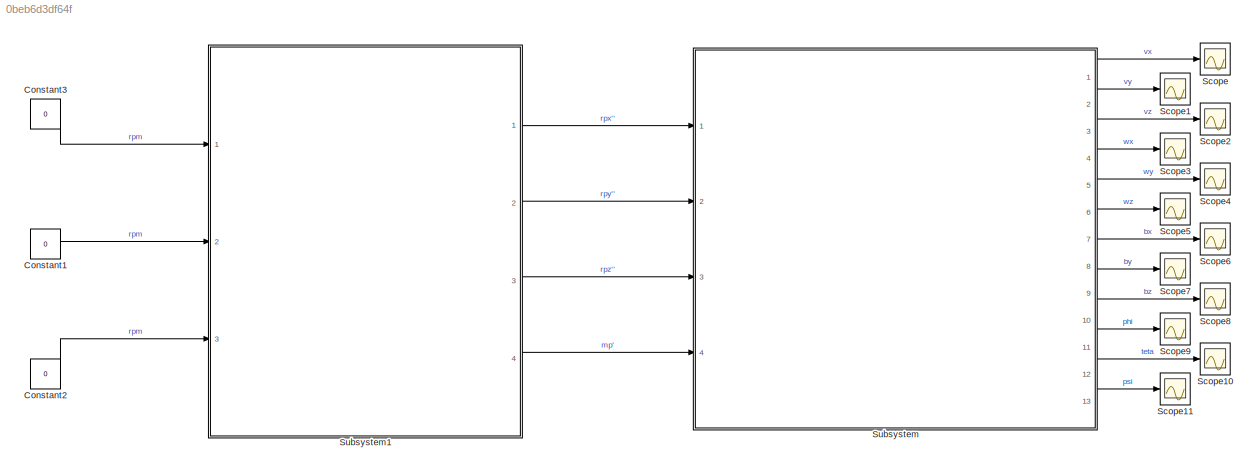
MODEL slx_0beb6d3df64f
KIND model
CONFIG AbsTol = auto
CONFIG EnableMultiTasking = on
CONFIG FixedStep = auto
CONFIG MaxStep = auto
CONFIG MinStep = auto
CONFIG RelTol = 1e-3
CONFIG SampleTimeConstraint = Unconstrained
CONFIG SolverName = VariableStepAuto
CONFIG StartTime = 0.0
CONFIG StopTime = 100
BLOCK [Constant] Constant1
  Value = 0
BLOCK [Constant] Constant2
  Value = 0
BLOCK [Constant] Constant3
  Value = 0
BLOCK [Scope] Scope
  Floating = off
  NumInputPorts = 1
  Ports = [1]
  ScopeSpecificationString = Simulink.scopes.TimeScopeBlockCfg('CurrentConfiguration', extmgr.ConfigurationSet(extmgr.Configuration('Core','General UI',true),extmgr.Configuration('Core','Source UI',true),extmgr.Configuration('Sources','WiredSimulink',true,'DataLoggingVariableName','ScopeData1'),extmgr.Configuration('Visuals','Time Domain',true,'SerializedDisplays',{struct('MinYLimReal','-1.00000','MaxYLimReal','1.00000','YLab...<+1361ch>
BLOCK [Scope] Scope1
  Floating = off
  NumInputPorts = 1
  Ports = [1]
  ScopeSpecificationString = Simulink.scopes.TimeScopeBlockCfg('CurrentConfiguration', extmgr.ConfigurationSet(extmgr.Configuration('Core','General UI',true),extmgr.Configuration('Core','Source UI',true),extmgr.Configuration('Sources','WiredSimulink',true,'DataLoggingVariableName','ScopeData2'),extmgr.Configuration('Visuals','Time Domain',true,'SerializedDisplays',{struct('MinYLimReal','-1.00000','MaxYLimReal','1.00000','YLab...<+1388ch>
BLOCK [Scope] Scope10
  Floating = off
  NumInputPorts = 1
  Ports = [1]
  ScopeSpecificationString = Simulink.scopes.TimeScopeBlockCfg('CurrentConfiguration', extmgr.ConfigurationSet(extmgr.Configuration('Core','General UI',true),extmgr.Configuration('Core','Source UI',true),extmgr.Configuration('Sources','WiredSimulink',true,'DataLoggingVariableName','ScopeData11'),extmgr.Configuration('Visuals','Time Domain',true,'SerializedDisplays',{struct('MinYLimReal','-0.07414','MaxYLimReal','0.6673','YLab...<+1360ch>
BLOCK [Scope] Scope11
  Floating = off
  NumInputPorts = 1
  Ports = [1]
  ScopeSpecificationString = Simulink.scopes.TimeScopeBlockCfg('CurrentConfiguration', extmgr.ConfigurationSet(extmgr.Configuration('Core','General UI',true),extmgr.Configuration('Core','Source UI',true),extmgr.Configuration('Sources','WiredSimulink',true,'DataLoggingVariableName','ScopeData12'),extmgr.Configuration('Visuals','Time Domain',true,'SerializedDisplays',{struct('MinYLimReal','-1.00000','MaxYLimReal','1.00000','YLa...<+1363ch>
BLOCK [Scope] Scope2
  Floating = off
  NumInputPorts = 1
  Ports = [1]
  ScopeSpecificationString = Simulink.scopes.TimeScopeBlockCfg('CurrentConfiguration', extmgr.ConfigurationSet(extmgr.Configuration('Core','General UI',true),extmgr.Configuration('Core','Source UI',true),extmgr.Configuration('Sources','WiredSimulink',true,'DataLoggingVariableName','ScopeData3'),extmgr.Configuration('Visuals','Time Domain',true,'SerializedDisplays',{struct('MinYLimReal','-1.00000','MaxYLimReal','1.00000','YLab...<+1409ch>
BLOCK [Scope] Scope3
  Floating = off
  NumInputPorts = 1
  Ports = [1]
  ScopeSpecificationString = Simulink.scopes.TimeScopeBlockCfg('CurrentConfiguration', extmgr.ConfigurationSet(extmgr.Configuration('Core','General UI',true),extmgr.Configuration('Core','Source UI',true),extmgr.Configuration('Sources','WiredSimulink',true,'DataLoggingVariableName','ScopeData4'),extmgr.Configuration('Visuals','Time Domain',true,'SerializedDisplays',{struct('MinYLimReal','-1.00000','MaxYLimReal','1.00000','YLab...<+1361ch>
BLOCK [Scope] Scope4
  Floating = off
  NumInputPorts = 1
  Ports = [1]
  ScopeSpecificationString = Simulink.scopes.TimeScopeBlockCfg('CurrentConfiguration', extmgr.ConfigurationSet(extmgr.Configuration('Core','General UI',true),extmgr.Configuration('Core','Source UI',true),extmgr.Configuration('Sources','WiredSimulink',true,'DataLoggingVariableName','ScopeData5'),extmgr.Configuration('Visuals','Time Domain',true,'SerializedDisplays',{struct('MinYLimReal','-0.01916','MaxYLimReal','0.04932','YLab...<+1361ch>
BLOCK [Scope] Scope5
  Floating = off
  NumInputPorts = 1
  Ports = [1]
  ScopeSpecificationString = Simulink.scopes.TimeScopeBlockCfg('CurrentConfiguration', extmgr.ConfigurationSet(extmgr.Configuration('Core','General UI',true),extmgr.Configuration('Core','Source UI',true),extmgr.Configuration('Sources','WiredSimulink',true,'DataLoggingVariableName','ScopeData6'),extmgr.Configuration('Visuals','Time Domain',true,'SerializedDisplays',{struct('MinYLimReal','-1.00000','MaxYLimReal','1.00000','YLab...<+1361ch>
BLOCK [Scope] Scope6
  Floating = off
  NumInputPorts = 1
  Ports = [1]
  ScopeSpecificationString = Simulink.scopes.TimeScopeBlockCfg('CurrentConfiguration', extmgr.ConfigurationSet(extmgr.Configuration('Core','General UI',true),extmgr.Configuration('Core','Source UI',true),extmgr.Configuration('Sources','WiredSimulink',true,'DataLoggingVariableName','ScopeData7'),extmgr.Configuration('Visuals','Time Domain',true,'SerializedDisplays',{struct('MinYLimReal','-0.00114','MaxYLimReal','0.0046','YLabe...<+1357ch>
BLOCK [Scope] Scope7
  Floating = off
  NumInputPorts = 1
  Ports = [1]
  ScopeSpecificationString = Simulink.scopes.TimeScopeBlockCfg('CurrentConfiguration', extmgr.ConfigurationSet(extmgr.Configuration('Core','General UI',true),extmgr.Configuration('Core','Source UI',true),extmgr.Configuration('Sources','WiredSimulink',true,'DataLoggingVariableName','ScopeData8'),extmgr.Configuration('Visuals','Time Domain',true,'SerializedDisplays',{struct('MinYLimReal','-1.00000','MaxYLimReal','1.00000','YLab...<+1688ch>
BLOCK [Scope] Scope8
  Floating = off
  NumInputPorts = 1
  Ports = [1]
  ScopeSpecificationString = Simulink.scopes.TimeScopeBlockCfg('CurrentConfiguration', extmgr.ConfigurationSet(extmgr.Configuration('Core','General UI',true),extmgr.Configuration('Core','Source UI',true),extmgr.Configuration('Sources','WiredSimulink',true,'DataLoggingVariableName','ScopeData9'),extmgr.Configuration('Visuals','Time Domain',true,'SerializedDisplays',{struct('MinYLimReal','-0.00128','MaxYLimReal','0.00121','YLab...<+1361ch>
BLOCK [Scope] Scope9
  Floating = off
  NumInputPorts = 1
  Ports = [1]
  ScopeSpecificationString = Simulink.scopes.TimeScopeBlockCfg('CurrentConfiguration', extmgr.ConfigurationSet(extmgr.Configuration('Core','General UI',true),extmgr.Configuration('Core','Source UI',true),extmgr.Configuration('Sources','WiredSimulink',true,'DataLoggingVariableName','ScopeData10'),extmgr.Configuration('Visuals','Time Domain',true,'SerializedDisplays',{struct('MinYLimReal','-1.00000','MaxYLimReal','1.00000','YLa...<+1362ch>
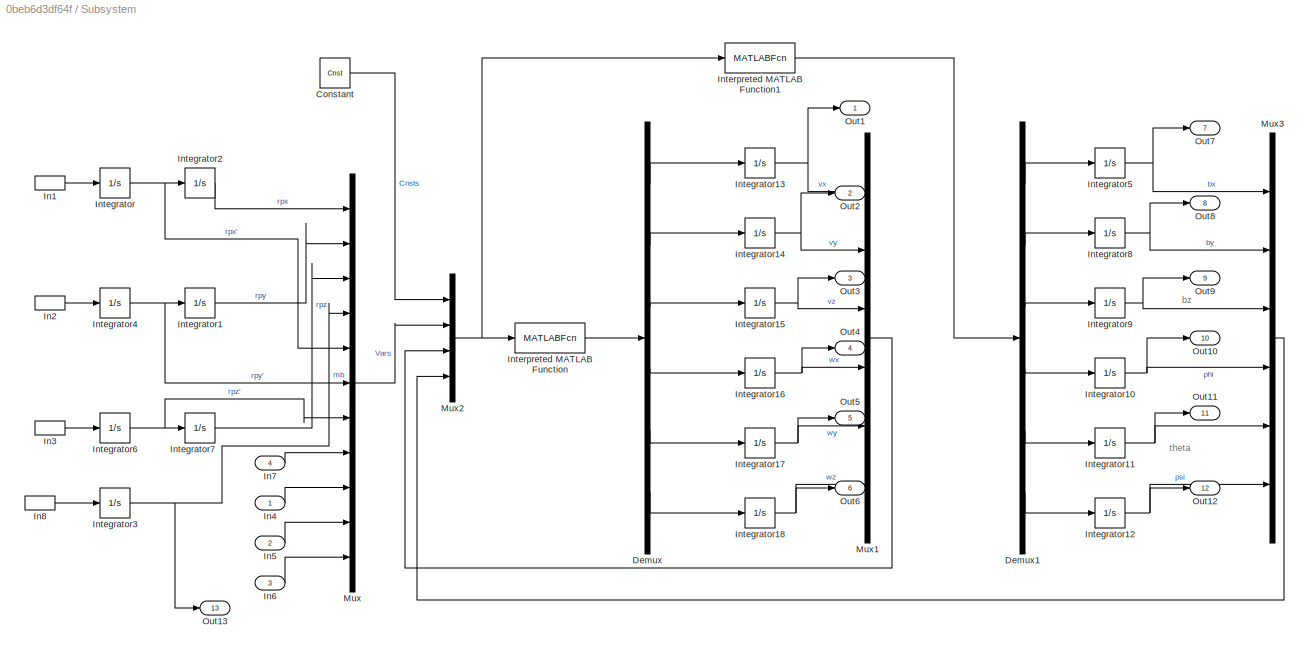
BLOCK [SubSystem] Subsystem
  Ports = [4, 13]
  RequestExecContextInheritance = off
BLOCK [Constant] Subsystem/Constant
  Value = Cnst
BLOCK [Demux] Subsystem/Demux
  Outputs = 6
  Ports = [1, 6]
BLOCK [Demux] Subsystem/Demux1
  Outputs = 6
  Ports = [1, 6]
BLOCK [InportShadow] Subsystem/In1
BLOCK [InportShadow] Subsystem/In2
  Port = 2
BLOCK [InportShadow] Subsystem/In3
  Port = 3
BLOCK [Inport] Subsystem/In4
BLOCK [Inport] Subsystem/In5
  Port = 2
BLOCK [Inport] Subsystem/In6
  Port = 3
BLOCK [Inport] Subsystem/In7
  Port = 4
BLOCK [InportShadow] Subsystem/In8
  Port = 4
BLOCK [Integrator] Subsystem/Integrator
  Ports = [1, 1]
BLOCK [Integrator] Subsystem/Integrator1
  InitialCondition = rpy0
  Ports = [1, 1]
BLOCK [Integrator] Subsystem/Integrator10
  Ports = [1, 1]
BLOCK [Integrator] Subsystem/Integrator11
  Ports = [1, 1]
BLOCK [Integrator] Subsystem/Integrator12
  Ports = [1, 1]
BLOCK [Integrator] Subsystem/Integrator13
  Ports = [1, 1]
BLOCK [Integrator] Subsystem/Integrator14
  Ports = [1, 1]
BLOCK [Integrator] Subsystem/Integrator15
  Ports = [1, 1]
BLOCK [Integrator] Subsystem/Integrator16
  Ports = [1, 1]
BLOCK [Integrator] Subsystem/Integrator17
  Ports = [1, 1]
BLOCK [Integrator] Subsystem/Integrator18
  Ports = [1, 1]
BLOCK [Integrator] Subsystem/Integrator2
  InitialCondition = rpx0
  Ports = [1, 1]
BLOCK [Integrator] Subsystem/Integrator3
  InitialCondition = mb0
  Ports = [1, 1]
BLOCK [Integrator] Subsystem/Integrator4
  Ports = [1, 1]
BLOCK [Integrator] Subsystem/Integrator5
  Ports = [1, 1]
BLOCK [Integrator] Subsystem/Integrator6
  Ports = [1, 1]
BLOCK [Integrator] Subsystem/Integrator7
  InitialCondition = rpz0
  Ports = [1, 1]
BLOCK [Integrator] Subsystem/Integrator8
  Ports = [1, 1]
BLOCK [Integrator] Subsystem/Integrator9
  Ports = [1, 1]
BLOCK [MATLABFcn] Subsystem/Interpreted MATLAB Function
  MATLABFcn = Calculate_acceleration_body
  OutputDimensions = 6
  Ports = [1, 1]
BLOCK [MATLABFcn] Subsystem/Interpreted MATLAB Function1
  MATLABFcn = Calculate_velocity_inertial
  Output1D = off
  OutputDimensions = 6
  Ports = [1, 1]
BLOCK [Mux] Subsystem/Mux
  DisplayOption = bar
  Inputs = 11
  Ports = [11, 1]
BLOCK [Mux] Subsystem/Mux1
  DisplayOption = bar
  Inputs = 6
  Ports = [6, 1]
BLOCK [Mux] Subsystem/Mux2
  DisplayOption = bar
  Ports = [4, 1]
BLOCK [Mux] Subsystem/Mux3
  DisplayOption = bar
  Inputs = 6
  Ports = [6, 1]
BLOCK [Outport] Subsystem/Out1
BLOCK [Outport] Subsystem/Out10
  Port = 10
BLOCK [Outport] Subsystem/Out11
  Port = 11
BLOCK [Outport] Subsystem/Out12
  Port = 12
BLOCK [Outport] Subsystem/Out13
  Port = 13
BLOCK [Outport] Subsystem/Out2
  Port = 2
BLOCK [Outport] Subsystem/Out3
  Port = 3
BLOCK [Outport] Subsystem/Out4
  Port = 4
BLOCK [Outport] Subsystem/Out5
  Port = 5
BLOCK [Outport] Subsystem/Out6
  Port = 6
BLOCK [Outport] Subsystem/Out7
  Port = 7
BLOCK [Outport] Subsystem/Out8
  Port = 8
BLOCK [Outport] Subsystem/Out9
  Port = 9
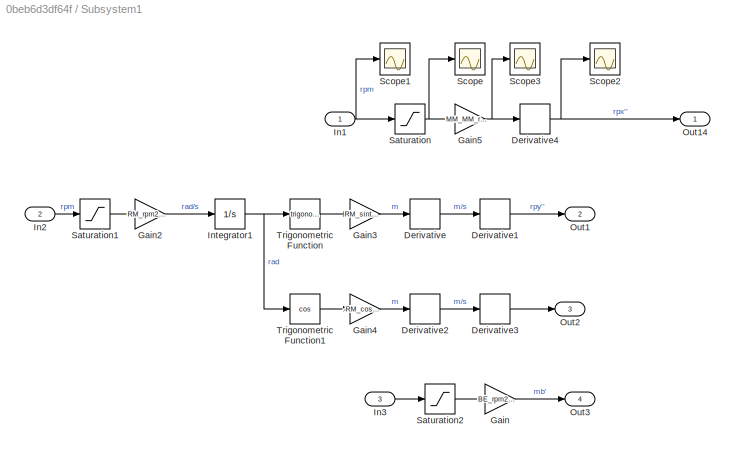
BLOCK [SubSystem] Subsystem1
  Ports = [3, 4]
  RequestExecContextInheritance = off
BLOCK [Derivative] Subsystem1/Derivative
BLOCK [Derivative] Subsystem1/Derivative1
BLOCK [Derivative] Subsystem1/Derivative2
BLOCK [Derivative] Subsystem1/Derivative3
BLOCK [Derivative] Subsystem1/Derivative4
BLOCK [Gain] Subsystem1/Gain
  Gain = BE_rpm2kgps
BLOCK [Gain] Subsystem1/Gain2
  Gain = RM_rpm2radps
BLOCK [Gain] Subsystem1/Gain3
  Gain = RM_sintet2y
BLOCK [Gain] Subsystem1/Gain4
  Gain = -RM_costet2z
BLOCK [Gain] Subsystem1/Gain5
  Gain = MM_MM_rpms2mpss
BLOCK [Inport] Subsystem1/In1
BLOCK [Inport] Subsystem1/In2
  Port = 2
BLOCK [Inport] Subsystem1/In3
  Port = 3
BLOCK [Integrator] Subsystem1/Integrator1
  Ports = [1, 1]
BLOCK [Outport] Subsystem1/Out1
  Port = 2
BLOCK [Outport] Subsystem1/Out14
BLOCK [Outport] Subsystem1/Out2
  Port = 3
BLOCK [Outport] Subsystem1/Out3
  Port = 4
BLOCK [Saturate] Subsystem1/Saturation
  LowerLimit = -350
  UpperLimit = 350
BLOCK [Saturate] Subsystem1/Saturation1
  LowerLimit = -350
  UpperLimit = 350
BLOCK [Saturate] Subsystem1/Saturation2
  LowerLimit = -350
  UpperLimit = 350
BLOCK [Scope] Subsystem1/Scope
  Floating = off
  NumInputPorts = 1
  Ports = [1]
  ScopeSpecificationString = Simulink.scopes.TimeScopeBlockCfg('CurrentConfiguration', extmgr.ConfigurationSet(extmgr.Configuration('Core','General UI',true),extmgr.Configuration('Core','Source UI',true),extmgr.Configuration('Sources','WiredSimulink',true,'DataLoggingVariableName','ScopeData5'),extmgr.Configuration('Visuals','Time Domain',true,'SerializedDisplays',{struct('MinYLimReal','-262.07044','MaxYLimReal','108.6516','Y...<+1381ch>
BLOCK [Scope] Subsystem1/Scope1
  Floating = off
  NumInputPorts = 1
  Ports = [1]
  ScopeSpecificationString = Simulink.scopes.TimeScopeBlockCfg('CurrentConfiguration', extmgr.ConfigurationSet(extmgr.Configuration('Core','General UI',true),extmgr.Configuration('Core','Source UI',true),extmgr.Configuration('Sources','WiredSimulink',true,'DataLoggingVariableName','ScopeData6'),extmgr.Configuration('Visuals','Time Domain',true,'SerializedDisplays',{struct('MinYLimReal','-262.07044','MaxYLimReal','108.6516','Y...<+1374ch>
BLOCK [Scope] Subsystem1/Scope2
  Floating = off
  NumInputPorts = 1
  Ports = [1]
  ScopeSpecificationString = Simulink.scopes.TimeScopeBlockCfg('CurrentConfiguration', extmgr.ConfigurationSet(extmgr.Configuration('Core','General UI',true),extmgr.Configuration('Core','Source UI',true),extmgr.Configuration('Sources','WiredSimulink',true,'DataLoggingVariableName','ScopeData7'),extmgr.Configuration('Visuals','Time Domain',true,'SerializedDisplays',{struct('MinYLimReal','-0.12809','MaxYLimReal','0.01477','YLab...<+1366ch>
BLOCK [Scope] Subsystem1/Scope3
  Floating = off
  NumInputPorts = 1
  Ports = [1]
  ScopeSpecificationString = Simulink.scopes.TimeScopeBlockCfg('CurrentConfiguration', extmgr.ConfigurationSet(extmgr.Configuration('Core','General UI',true),extmgr.Configuration('Core','Source UI',true),extmgr.Configuration('Sources','WiredSimulink',true,'DataLoggingVariableName','ScopeData8'),extmgr.Configuration('Visuals','Time Domain',true,'SerializedDisplays',{struct('MinYLimReal','-0.00596','MaxYLimReal','0.00247','YLab...<+1364ch>
BLOCK [Trigonometry] Subsystem1/Trigonometric Function
  Ports = [1, 1]
BLOCK [Trigonometry] Subsystem1/Trigonometric Function1
  Operator = cos
  Ports = [1, 1]
ANNOTATION Subsystem: bz
ANNOTATION Subsystem: theta
LINE Constant1:1 -> Subsystem1:2
LINE Constant2:1 -> Subsystem1:3
LINE Constant3:1 -> Subsystem1:1
LINE Subsystem/Constant:1 -> Subsystem/Mux2:1
LINE Subsystem/Demux1:1 -> Subsystem/Integrator5:1
LINE Subsystem/Demux1:2 -> Subsystem/Integrator8:1
LINE Subsystem/Demux1:3 -> Subsystem/Integrator9:1
LINE Subsystem/Demux1:4 -> Subsystem/Integrator10:1
LINE Subsystem/Demux1:5 -> Subsystem/Integrator11:1
LINE Subsystem/Demux1:6 -> Subsystem/Integrator12:1
LINE Subsystem/Demux:1 -> Subsystem/Integrator13:1
LINE Subsystem/Demux:2 -> Subsystem/Integrator14:1
LINE Subsystem/Demux:3 -> Subsystem/Integrator15:1
LINE Subsystem/Demux:4 -> Subsystem/Integrator16:1
LINE Subsystem/Demux:5 -> Subsystem/Integrator17:1
LINE Subsystem/Demux:6 -> Subsystem/Integrator18:1
LINE Subsystem/In1:1 -> Subsystem/Integrator:1
LINE Subsystem/In2:1 -> Subsystem/Integrator4:1
LINE Subsystem/In3:1 -> Subsystem/Integrator6:1
LINE Subsystem/In4:1 -> Subsystem/Mux:9
LINE Subsystem/In5:1 -> Subsystem/Mux:10
LINE Subsystem/In6:1 -> Subsystem/Mux:11
LINE Subsystem/In7:1 -> Subsystem/Mux:8
LINE Subsystem/In8:1 -> Subsystem/Integrator3:1
NET Subsystem/Integrator10:1 -> Subsystem/Mux3:4, Subsystem/Out10:1
NET Subsystem/Integrator11:1 -> Subsystem/Mux3:5, Subsystem/Out11:1
NET Subsystem/Integrator12:1 -> Subsystem/Mux3:6, Subsystem/Out12:1
NET Subsystem/Integrator13:1 -> Subsystem/Mux1:1, Subsystem/Out1:1
NET Subsystem/Integrator14:1 -> Subsystem/Mux1:2, Subsystem/Out2:1
NET Subsystem/Integrator15:1 -> Subsystem/Mux1:3, Subsystem/Out3:1
NET Subsystem/Integrator16:1 -> Subsystem/Mux1:4, Subsystem/Out4:1
NET Subsystem/Integrator17:1 -> Subsystem/Mux1:5, Subsystem/Out5:1
NET Subsystem/Integrator18:1 -> Subsystem/Mux1:6, Subsystem/Out6:1
LINE Subsystem/Integrator1:1 -> Subsystem/Mux:2
LINE Subsystem/Integrator2:1 -> Subsystem/Mux:1
NET Subsystem/Integrator3:1 -> Subsystem/Mux:4, Subsystem/Out13:1
NET Subsystem/Integrator4:1 -> Subsystem/Integrator1:1, Subsystem/Mux:6
NET Subsystem/Integrator5:1 -> Subsystem/Mux3:1, Subsystem/Out7:1
NET Subsystem/Integrator6:1 -> Subsystem/Integrator7:1, Subsystem/Mux:7
LINE Subsystem/Integrator7:1 -> Subsystem/Mux:3
NET Subsystem/Integrator8:1 -> Subsystem/Mux3:2, Subsystem/Out8:1
NET Subsystem/Integrator9:1 -> Subsystem/Mux3:3, Subsystem/Out9:1
NET Subsystem/Integrator:1 -> Subsystem/Integrator2:1, Subsystem/Mux:5
LINE Subsystem/Interpreted MATLAB Function1:1 -> Subsystem/Demux1:1
LINE Subsystem/Interpreted MATLAB Function:1 -> Subsystem/Demux:1
LINE Subsystem/Mux1:1 -> Subsystem/Mux2:3
NET Subsystem/Mux2:1 -> Subsystem/Interpreted MATLAB Function1:1, Subsystem/Interpreted MATLAB Function:1
LINE Subsystem/Mux3:1 -> Subsystem/Mux2:4
LINE Subsystem/Mux:1 -> Subsystem/Mux2:2
LINE Subsystem1/Derivative1:1 -> Subsystem1/Out1:1
LINE Subsystem1/Derivative2:1 -> Subsystem1/Derivative3:1
LINE Subsystem1/Derivative3:1 -> Subsystem1/Out2:1
NET Subsystem1/Derivative4:1 -> Subsystem1/Out14:1, Subsystem1/Scope2:1
LINE Subsystem1/Derivative:1 -> Subsystem1/Derivative1:1
LINE Subsystem1/Gain2:1 -> Subsystem1/Integrator1:1
LINE Subsystem1/Gain3:1 -> Subsystem1/Derivative:1
LINE Subsystem1/Gain4:1 -> Subsystem1/Derivative2:1
NET Subsystem1/Gain5:1 -> Subsystem1/Derivative4:1, Subsystem1/Scope3:1
LINE Subsystem1/Gain:1 -> Subsystem1/Out3:1
NET Subsystem1/In1:1 -> Subsystem1/Saturation:1, Subsystem1/Scope1:1
LINE Subsystem1/In2:1 -> Subsystem1/Saturation1:1
LINE Subsystem1/In3:1 -> Subsystem1/Saturation2:1
NET Subsystem1/Integrator1:1 -> Subsystem1/Trigonometric Function1:1, Subsystem1/Trigonometric Function:1
LINE Subsystem1/Saturation1:1 -> Subsystem1/Gain2:1
LINE Subsystem1/Saturation2:1 -> Subsystem1/Gain:1
NET Subsystem1/Saturation:1 -> Subsystem1/Gain5:1, Subsystem1/Scope:1
LINE Subsystem1/Trigonometric Function1:1 -> Subsystem1/Gain4:1
LINE Subsystem1/Trigonometric Function:1 -> Subsystem1/Gain3:1
LINE Subsystem1:1 -> Subsystem:1
LINE Subsystem1:2 -> Subsystem:2
LINE Subsystem1:3 -> Subsystem:3
LINE Subsystem1:4 -> Subsystem:4
LINE Subsystem:1 -> Scope:1
LINE Subsystem:10 -> Scope9:1
LINE Subsystem:11 -> Scope10:1
LINE Subsystem:12 -> Scope11:1
LINE Subsystem:2 -> Scope1:1
LINE Subsystem:3 -> Scope2:1
LINE Subsystem:4 -> Scope3:1
LINE Subsystem:5 -> Scope4:1
LINE Subsystem:6 -> Scope5:1
LINE Subsystem:7 -> Scope6:1
LINE Subsystem:8 -> Scope7:1
LINE Subsystem:9 -> Scope8:1
note: NET lines group one-source signal fan-out (src -> all destinations, sorted); 1:1 wires keep LINE
